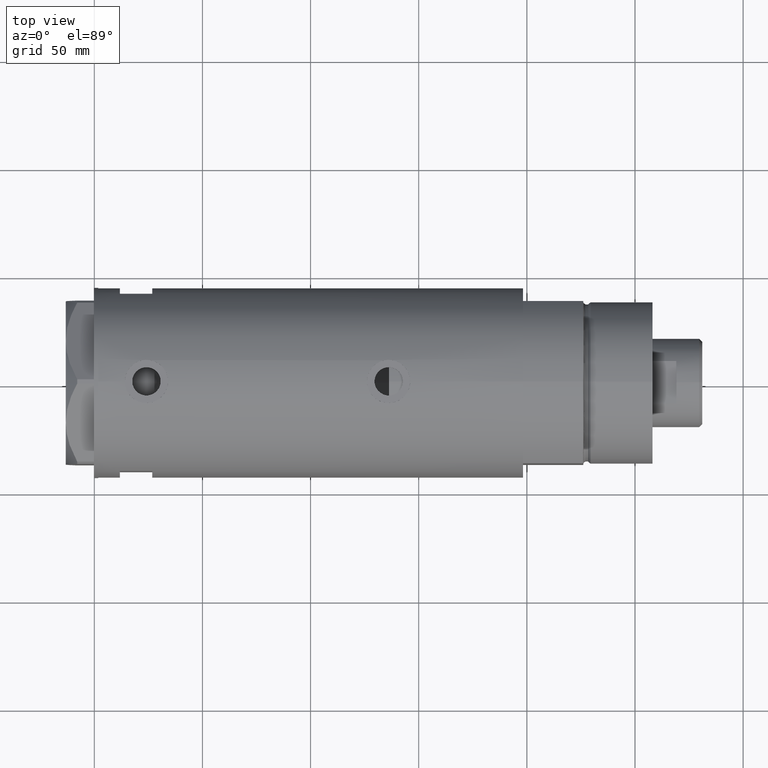
[diagram: clean part render]
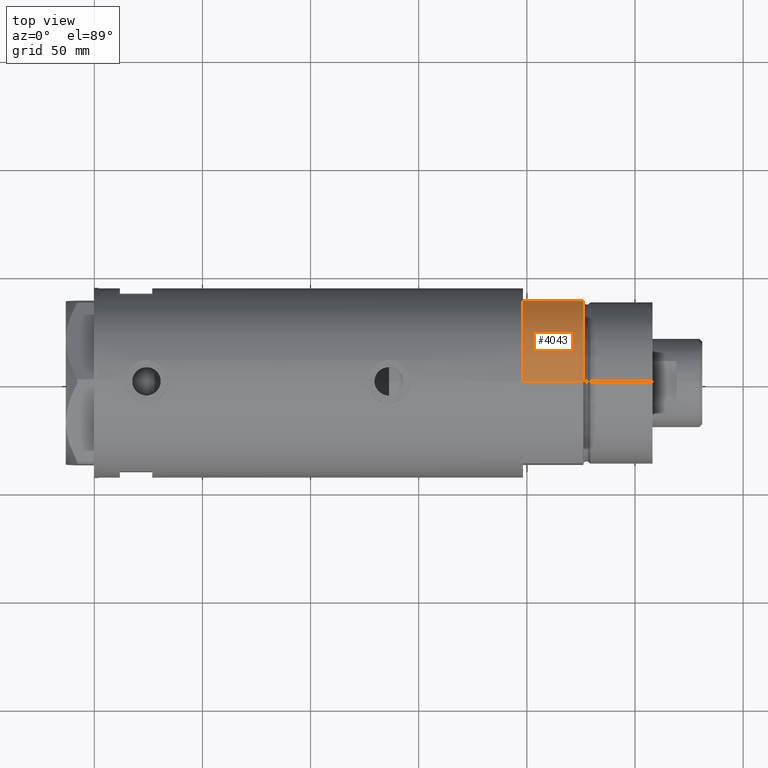
[diagram: same view with one face highlighted and labeled with its STEP entity id]
A machine part, top view. The second image highlights one B-rep face of the part: STEP entity #4043.
In plain terms, the highlighted cylindrical surface (partial cylindrical patch) has radius 44 mm, axis along (-1, -0, 0).
Its self-contained STEP definition (entity closure, byte-faithful):
#74 = ORIENTED_EDGE ( 'NONE', *, *, #5859, .F. ) ;
#333 = CARTESIAN_POINT ( 'NONE',  ( -44.00000000000000000, 0.000000000000000000, 27.89999999999999858 ) ) ;
#356 = CARTESIAN_POINT ( 'NONE',  ( -44.00000000000000000, 0.000000000000000000, 0.000000000000000000 ) ) ;
#673 = DIRECTION ( 'NONE',  ( -1.000000000000000000, 0.000000000000000000, 0.000000000000000000 ) ) ;
#842 = VERTEX_POINT ( 'NONE', #3123 ) ;
#886 = LINE ( 'NONE', #5280, #5812 ) ;
#1086 = FACE_OUTER_BOUND ( 'NONE', #4472, .T. ) ;
#1210 = CARTESIAN_POINT ( 'NONE',  ( 0.000000000000000000, 0.000000000000000000, 0.000000000000000000 ) ) ;
#1278 = EDGE_CURVE ( 'NONE', #842, #3817, #3656, .T. ) ;
#1591 = CARTESIAN_POINT ( 'NONE',  ( 0.000000000000000000, 0.000000000000000000, 27.89999999999999858 ) ) ;
#1662 = CARTESIAN_POINT ( 'NONE',  ( -23.01629857296780557, 37.50000000000000000, 0.000000000000000000 ) ) ;
#1931 = CARTESIAN_POINT ( 'NONE',  ( 0.000000000000000000, 0.000000000000000000, 27.89999999999999858 ) ) ;
#2081 = CARTESIAN_POINT ( 'NONE',  ( -23.01629857296780557, 37.50000000000000000, 0.000000000000000000 ) ) ;
#2114 = DIRECTION ( 'NONE',  ( 1.000000000000000000, 0.000000000000000000, 0.000000000000000000 ) ) ;
#2149 = DIRECTION ( 'NONE',  ( 0.000000000000000000, 0.000000000000000000, 1.000000000000000000 ) ) ;
#2190 = VERTEX_POINT ( 'NONE', #356 ) ;
#2223 = VECTOR ( 'NONE', #5427, 1000.000000000000000 ) ;
#2871 = ORIENTED_EDGE ( 'NONE', *, *, #5261, .T. ) ;
#2975 = AXIS2_PLACEMENT_3D ( 'NONE', #1931, #3805, #673 ) ;
#3094 = CIRCLE ( 'NONE', #4365, 44.00000000000000000 ) ;
#3123 = CARTESIAN_POINT ( 'NONE',  ( -23.01629857296780557, 37.50000000000000000, 27.89999999999999858 ) ) ;
#3365 = DIRECTION ( 'NONE',  ( -0.000000000000000000, -0.000000000000000000, -1.000000000000000000 ) ) ;
#3630 = ORIENTED_EDGE ( 'NONE', *, *, #4243, .F. ) ;
#3656 = CIRCLE ( 'NONE', #5500, 44.00000000000000000 ) ;
#3805 = DIRECTION ( 'NONE',  ( -0.000000000000000000, -0.000000000000000000, -1.000000000000000000 ) ) ;
#3817 = VERTEX_POINT ( 'NONE', #333 ) ;
#4043 = ADVANCED_FACE ( 'NONE', ( #1086 ), #5663, .T. ) ;
#4243 = EDGE_CURVE ( 'NONE', #3817, #2190, #886, .T. ) ;
#4365 = AXIS2_PLACEMENT_3D ( 'NONE', #1210, #2149, #5877 ) ;
#4429 = LINE ( 'NONE', #2081, #2223 ) ;
#4472 = EDGE_LOOP ( 'NONE', ( #3630, #5155, #74, #2871 ) ) ;
#5155 = ORIENTED_EDGE ( 'NONE', *, *, #1278, .F. ) ;
#5261 = EDGE_CURVE ( 'NONE', #5753, #2190, #3094, .T. ) ;
#5280 = CARTESIAN_POINT ( 'NONE',  ( -44.00000000000000000, 0.000000000000000000, 27.89999999999999858 ) ) ;
#5427 = DIRECTION ( 'NONE',  ( -0.000000000000000000, -0.000000000000000000, 1.000000000000000000 ) ) ;
#5500 = AXIS2_PLACEMENT_3D ( 'NONE', #1591, #5813, #2114 ) ;
#5663 = CYLINDRICAL_SURFACE ( 'NONE', #2975, 44.00000000000000000 ) ;
#5753 = VERTEX_POINT ( 'NONE', #1662 ) ;
#5812 = VECTOR ( 'NONE', #3365, 1000.000000000000000 ) ;
#5813 = DIRECTION ( 'NONE',  ( 0.000000000000000000, 0.000000000000000000, 1.000000000000000000 ) ) ;
#5859 = EDGE_CURVE ( 'NONE', #5753, #842, #4429, .T. ) ;
#5877 = DIRECTION ( 'NONE',  ( 1.000000000000000000, 0.000000000000000000, 0.000000000000000000 ) ) ;